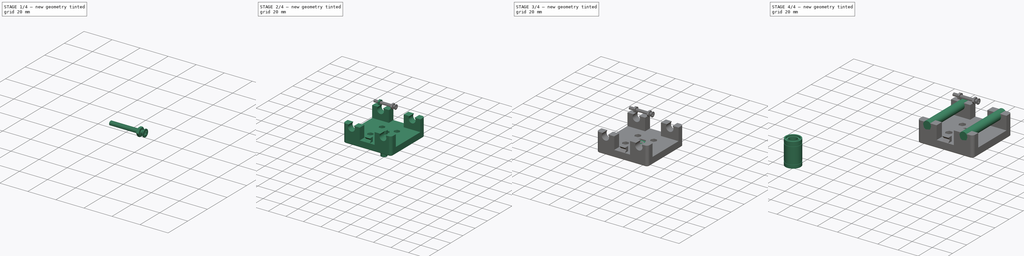
[diagram: build sequence overview — one tinted view per stage of 4, left to right]
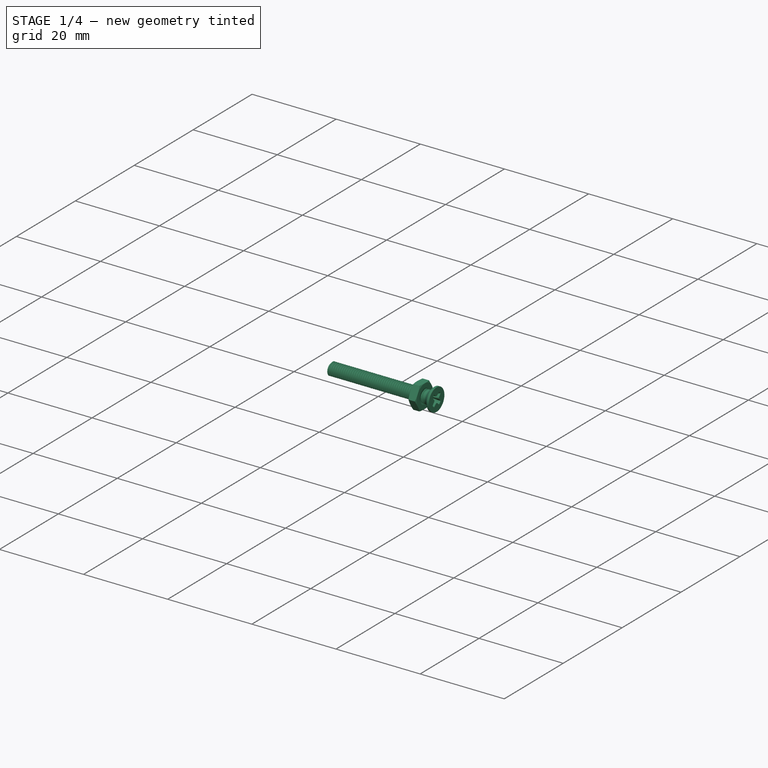
[diagram: stage 1 of 4 — iso view after this stage's code; geometry added in this stage tinted green]
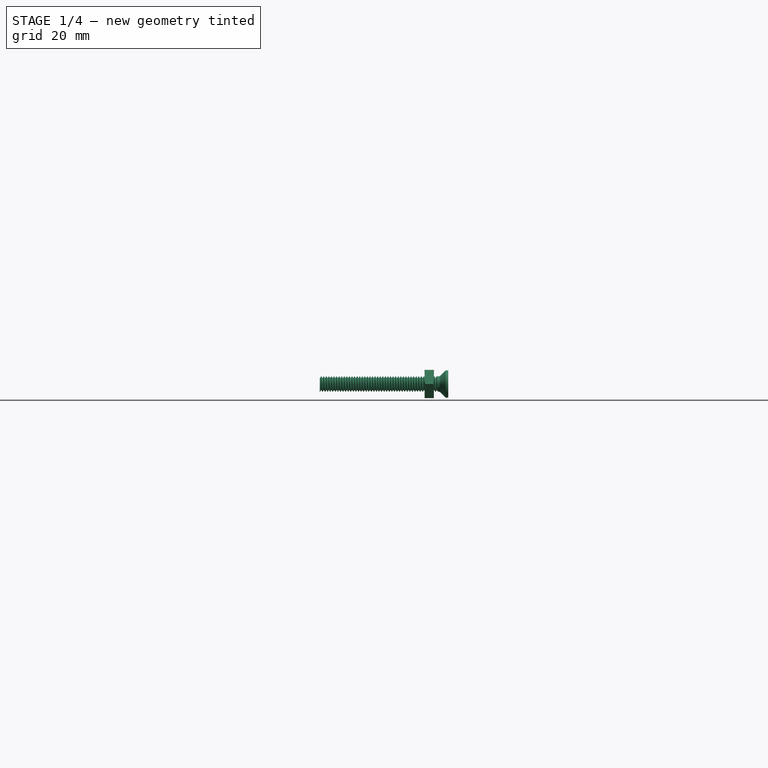
[diagram: stage 1 of 4 — front view after this stage's code; geometry added in this stage tinted green]
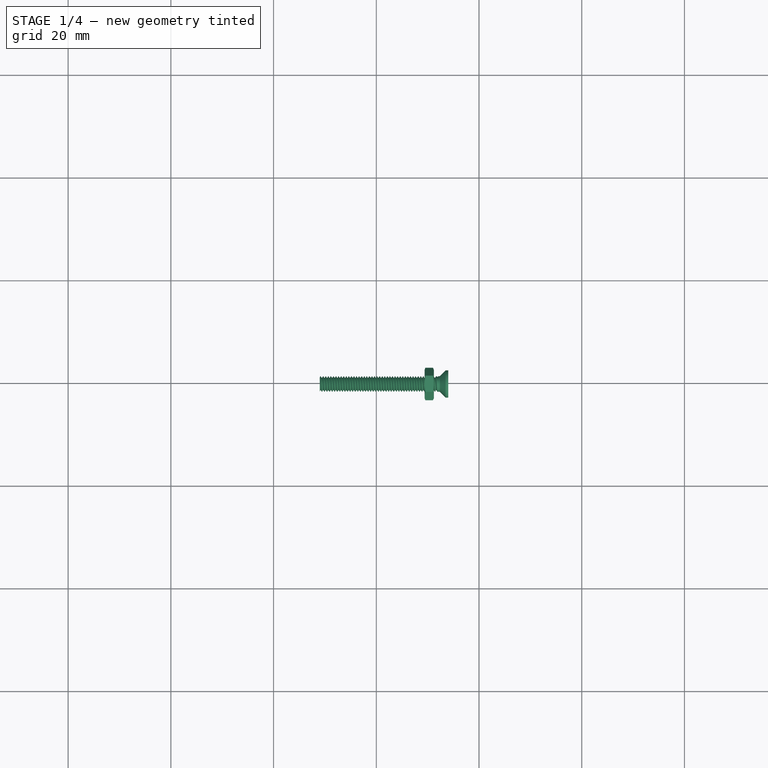
[diagram: stage 1 of 4 — top view after this stage's code; geometry added in this stage tinted green]
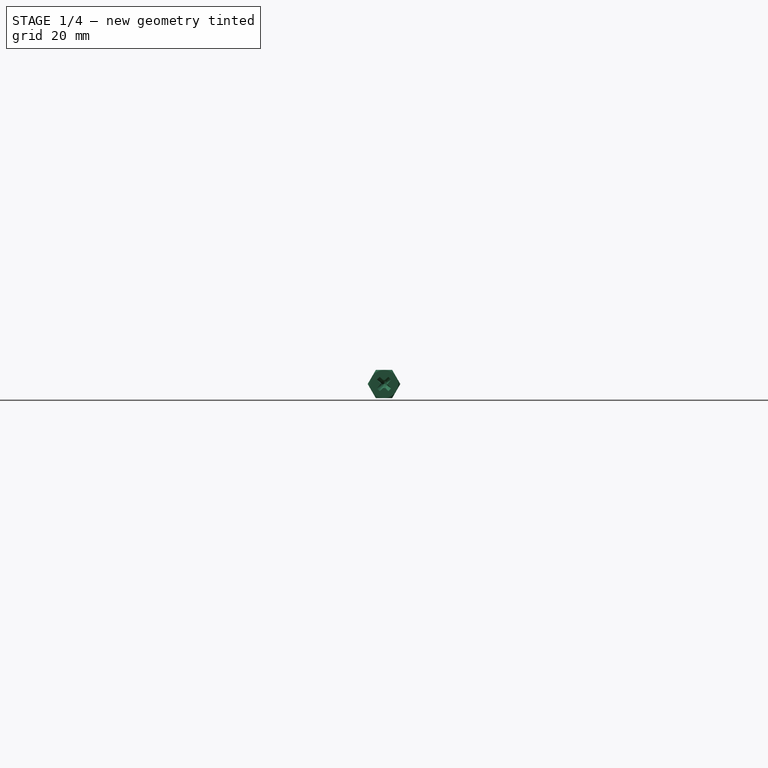
[diagram: stage 1 of 4 — right view after this stage's code; geometry added in this stage tinted green]
FCSTD DOCUMENT  (FreeCAD 0.18R15021 (Git))
Label: Pen_Holder
License: All rights reserved
LicenseURL: http://en.wikipedia.org/wiki/All_rights_reserved
objects: Part::Feature×7, App::Part×5, Part::Cylinder×3, Part::FeaturePython×3, Part::Cut×3, PartDesign::FeatureBase×2, Sketcher::SketchObject×1, PartDesign::Revolution×1, Part::Chamfer×1
note: 22 computed .brp shape members not serialized (recipe doc carries the construction recipe); baked Part::Feature solids carry a one-line shape summary decoded from their .brp

FEATURE [Part::FeaturePython] Nut  label="M3-Nut"  # Fasteners workbench fastener (typed FeaturePython)
  Placement = pos=(94.7,99.8,37) rot=(0,1,0;1.5708rad)
  diameter = 4
  invert = false
  matchOuter = false
  offset = 0
  thread = false
  type = 5
FEATURE [PartDesign::FeatureBase] Clone001
  BaseFeature = -> Nut
  Placement = pos=(109.4,99.85,36.95) rot=(0.57735,0.57735,0.57735;2.0944rad)
FEATURE [Part::FeaturePython] Screw  label="M3x25-Screw"  # Fasteners workbench fastener (typed FeaturePython)
  Placement = pos=(114,99.85,36.95) rot=(0,1,0;1.5708rad)
  diameter = 4
  invert = false
  length = 9
  matchOuter = false
  offset = 0
  thread = true
  type = 17
FEATURE [App::Part] Part026  label="Carriage z axis"
  Group = -> [Part025,Cut002007_solid,Cut002006_solid001,Nut,Clone,Clone001,Screw]
  License = CC BY 3.0
  LicenseURL = http://creativecommons.org/licenses/by/3.0/
  Origin = -> Origin026
  Placement = pos=(0,-4.82,0) rot=(0,0,1;0rad)
FEATURE [App::Part] Part024  label="Pen_Holder"
  Group = -> [Part026,Part027]
  License = CC BY 3.0
  LicenseURL = http://creativecommons.org/licenses/by/3.0/
  Origin = -> Origin024
  Placement = pos=(-64.55,-23,-91) rot=(1,0,0;1.5708rad)
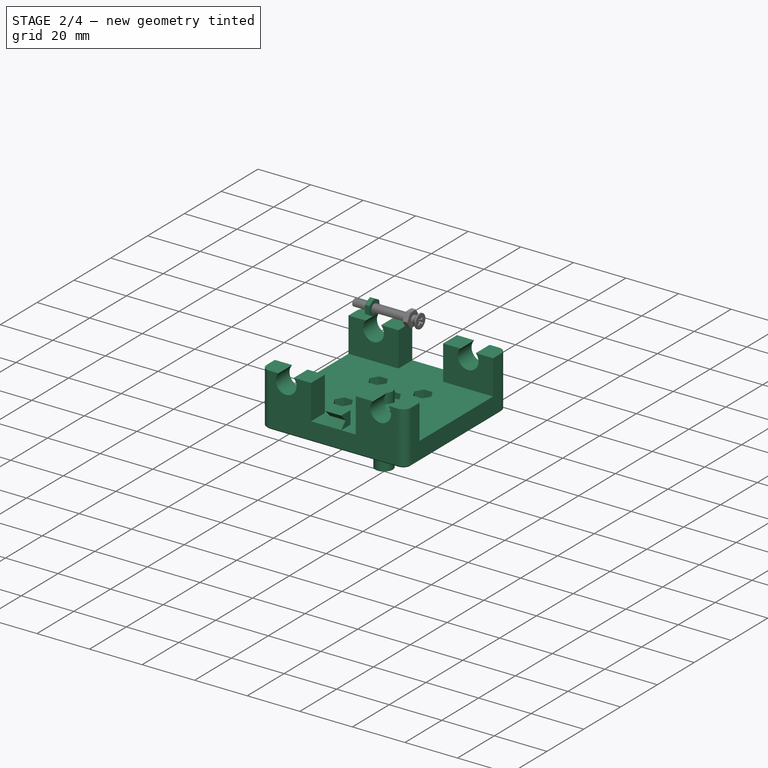
[diagram: stage 2 of 4 — iso view after this stage's code; geometry added in this stage tinted green]
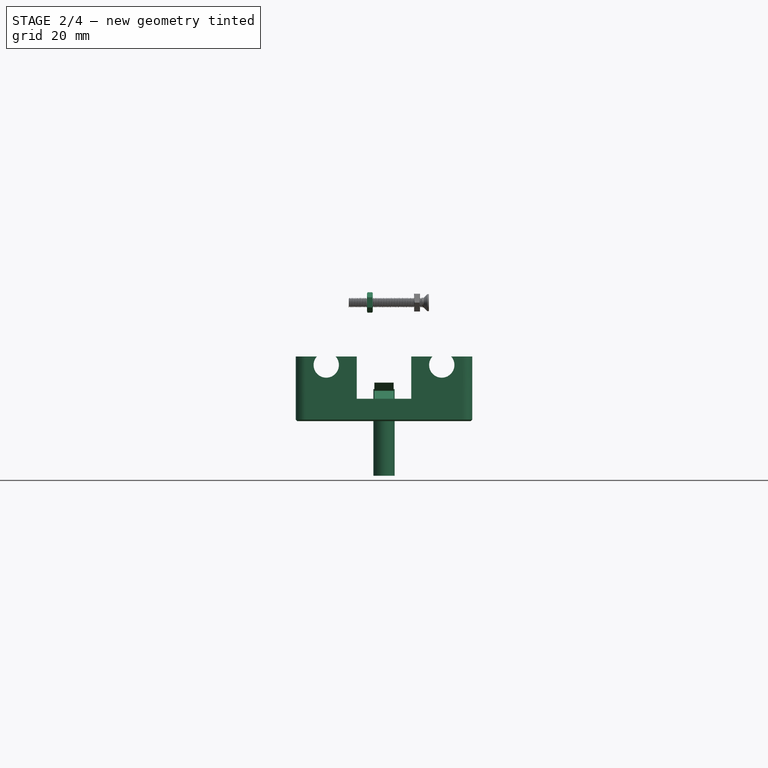
[diagram: stage 2 of 4 — front view after this stage's code; geometry added in this stage tinted green]
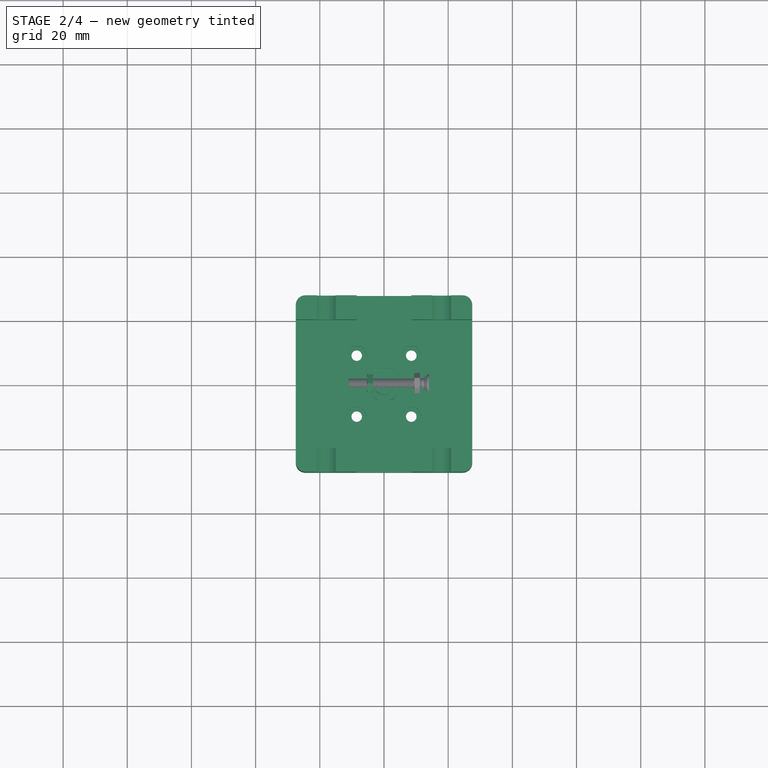
[diagram: stage 2 of 4 — top view after this stage's code; geometry added in this stage tinted green]
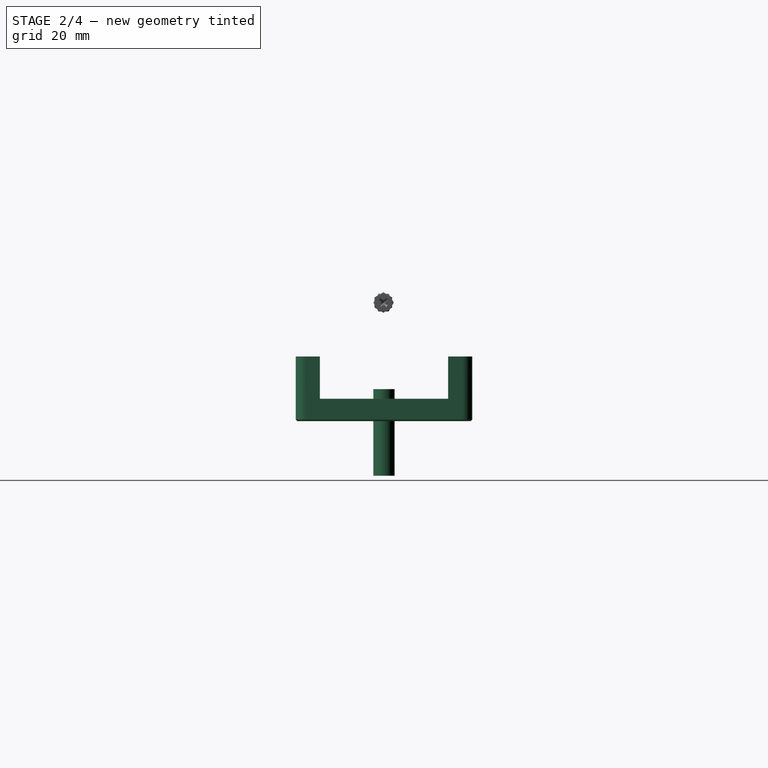
[diagram: stage 2 of 4 — right view after this stage's code; geometry added in this stage tinted green]
FEATURE [Part::Feature] Nut001001  label="M6-Nut001"
  Placement = pos=(100,100,4.8) rot=(0,0,1;0rad)
  shape: bbox 11.55 x 11.55 x 3.2 mm, 25 faces (baked)
FEATURE [Part::Feature] Cut002006_solid  label="Pen_Holder_Base_src"
  shape: bbox 55 x 55 x 20.16 mm, 767 faces (baked)
FEATURE [Part::Cut] Cut
  Base = -> Cut002006_solid
  Tool = -> Nut001001
FEATURE [Part::Cylinder] Cylinder
  Angle = 360
  AttacherType = Attacher::AttachEngine3D
  Height = 27
  Placement = pos=(100,100,-17) rot=(0,0,1;0rad)
  Radius = 3.3
FEATURE [App::Part] Part  label="Pen_Holder_Base003"
  Group = -> [Cut002006_solid,Cut001,Nut001001,Nut001002,Cut002,Cylinder,Cut,Chamfer]
  License = CC BY 3.0
  LicenseURL = http://creativecommons.org/licenses/by/3.0/
  Origin = -> Origin
FEATURE [App::Part] Part027  label="Tool base"
  Group = -> [Cylinder025,Cylinder026,Nut001,Part]
  License = CC BY 3.0
  LicenseURL = http://creativecommons.org/licenses/by/3.0/
  Origin = -> Origin027
FEATURE [PartDesign::FeatureBase] Clone
  BaseFeature = -> Nut
  Placement = pos=(94.7,99.8,37) rot=(0,1,0;1.5708rad)
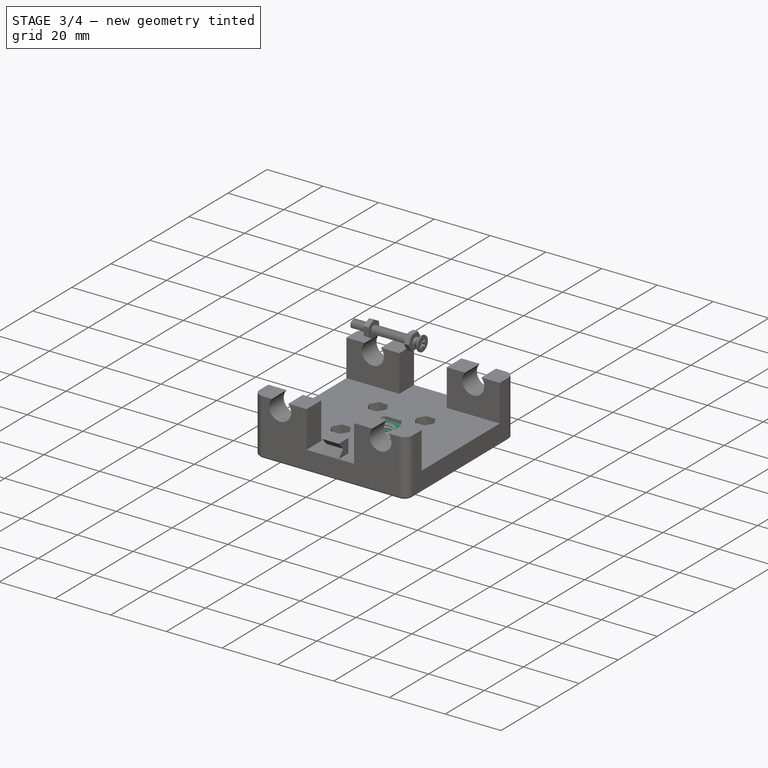
[diagram: stage 3 of 4 — iso view after this stage's code; geometry added in this stage tinted green]
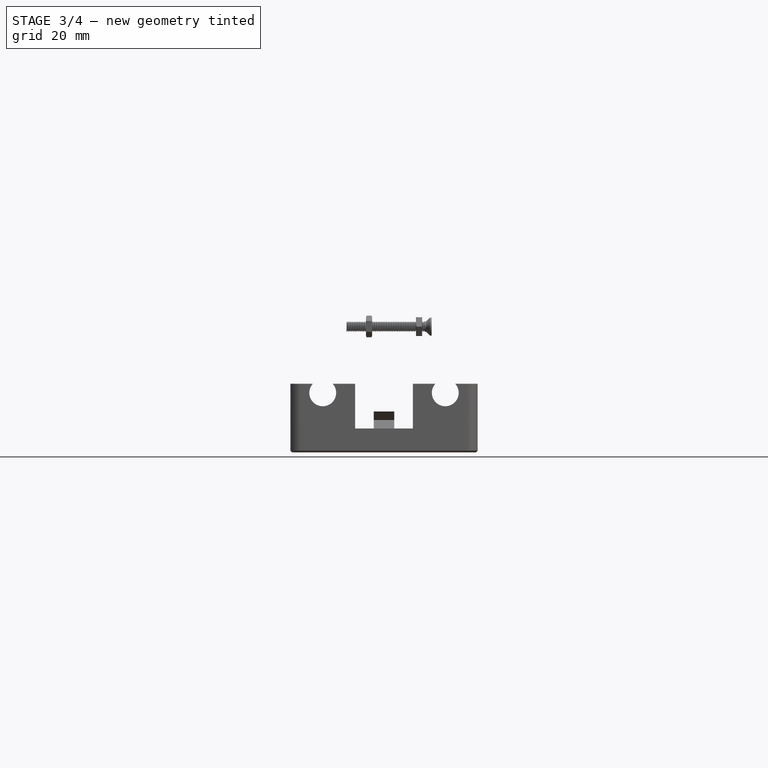
[diagram: stage 3 of 4 — front view after this stage's code; geometry added in this stage tinted green]
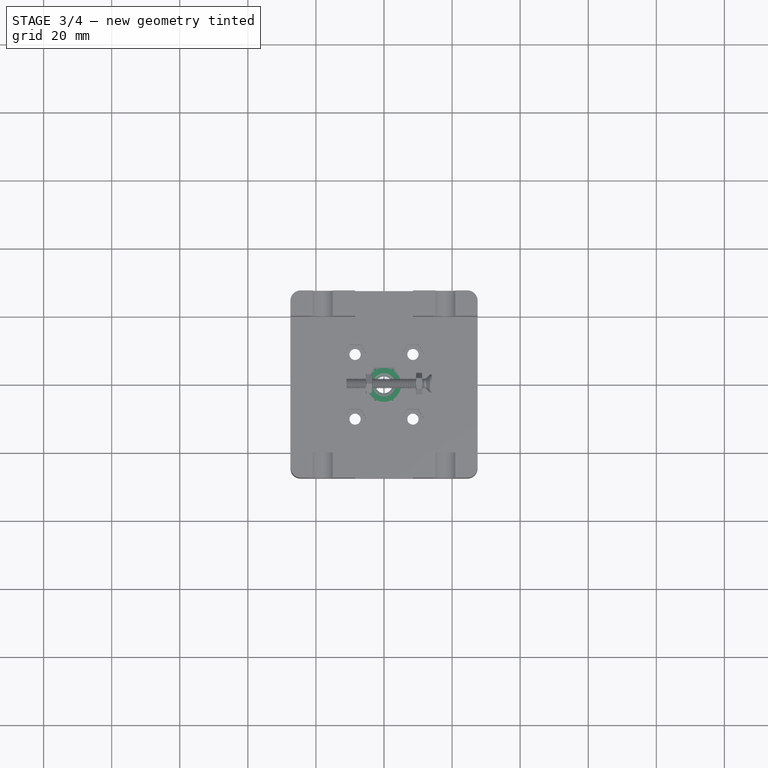
[diagram: stage 3 of 4 — top view after this stage's code; geometry added in this stage tinted green]
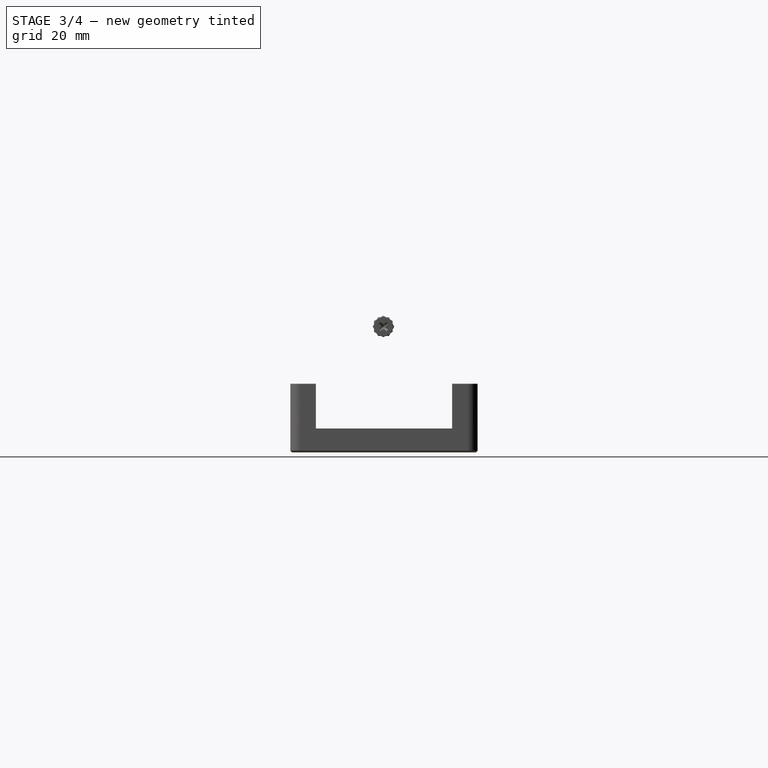
[diagram: stage 3 of 4 — right view after this stage's code; geometry added in this stage tinted green]
FEATURE [Part::FeaturePython] Nut001  label="M6-Nut"  # Fasteners workbench fastener (typed FeaturePython)
  Placement = pos=(100,100,2.8) rot=(0,0,1;0rad)
  diameter = 8
  invert = false
  matchOuter = false
  offset = 0
  thread = true
  type = 5
FEATURE [Part::Feature] Nut001002  label="M6-Nut002"
  Placement = pos=(100,100,2.8) rot=(0,0,1;0rad)
  shape: bbox 11.55 x 11.55 x 3.2 mm, 25 faces (baked)
FEATURE [Part::Cut] Cut001
  Base = -> Cut
  Tool = -> Nut001002
FEATURE [Part::Cut] Cut002
  Base = -> Cut001
  Tool = -> Cylinder
FEATURE [Part::Chamfer] Chamfer
  Base = -> Cut002
  Edges = 1 edges r=0.6: [Edge73]
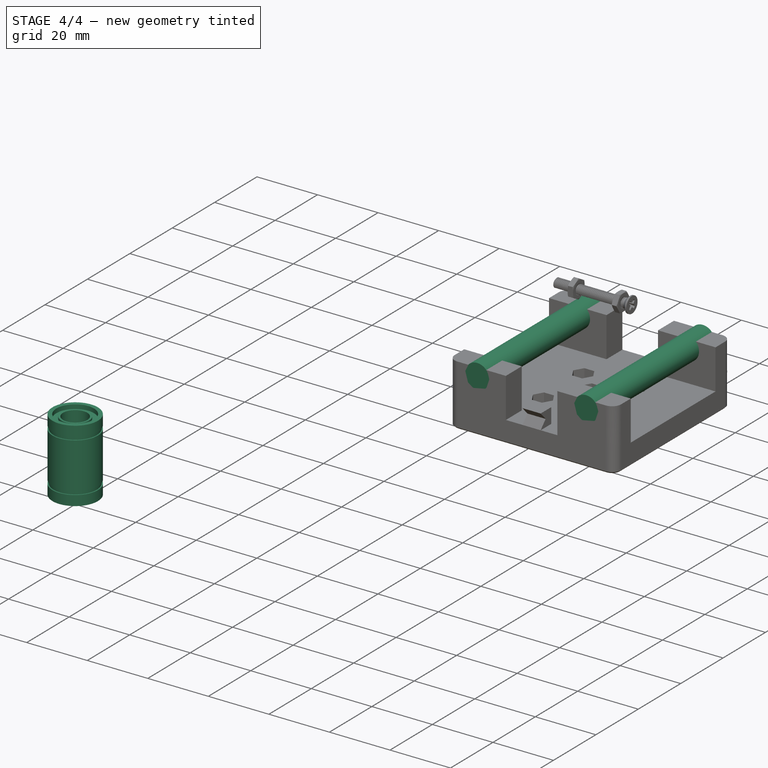
[diagram: stage 4 of 4 — iso view after this stage's code; geometry added in this stage tinted green]
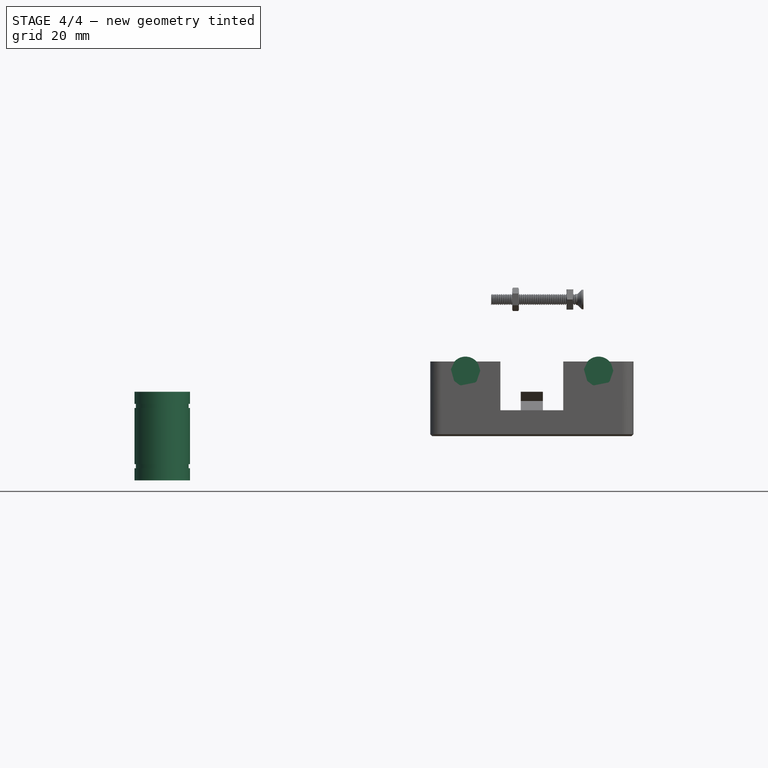
[diagram: stage 4 of 4 — front view after this stage's code; geometry added in this stage tinted green]
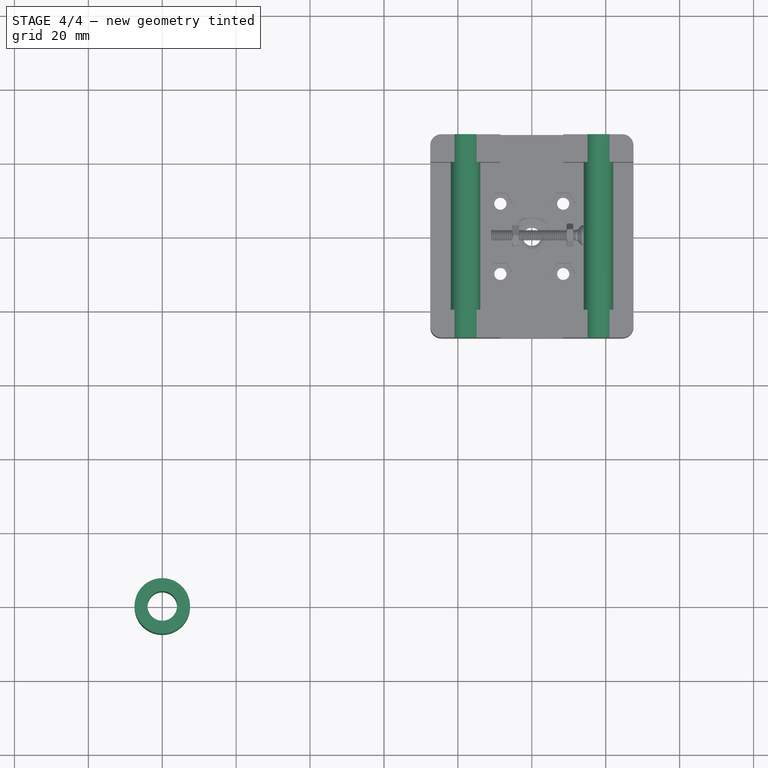
[diagram: stage 4 of 4 — top view after this stage's code; geometry added in this stage tinted green]
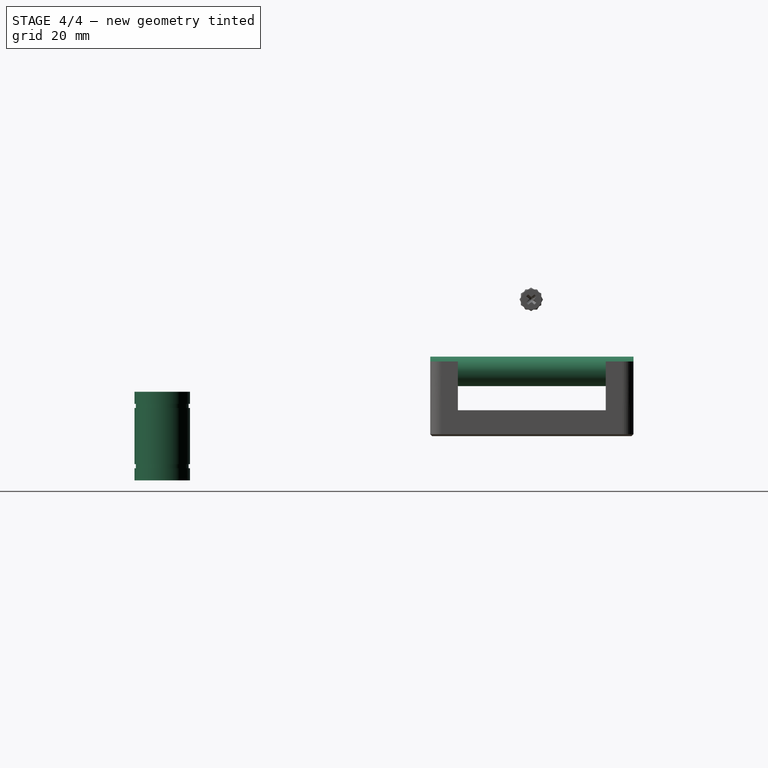
[diagram: stage 4 of 4 — right view after this stage's code; geometry added in this stage tinted green]
FEATURE [Part::Feature] Revolution015  label="LM8uu003"
  Placement = pos=(0,0,0) rot=(0.57735,0.57735,-0.57735;2.0944rad)
  shape: bbox 24 x 15 x 15 mm, 20 faces (baked)
FEATURE [Part::Feature] Revolution016  label="LM8uu004"
  Placement = pos=(0,-36,0) rot=(0.57735,0.57735,-0.57735;2.0944rad)
  shape: bbox 24 x 15 x 15 mm, 20 faces (baked)
FEATURE [Part::Cylinder] Cylinder026  label="Bar_8mm002"
  Angle = 360
  AttacherType = Attacher::AttachEngine3D
  Height = 55
  Placement = pos=(82.05,127.5,17.5) rot=(1,0,0;1.5708rad)
  Radius = 4
FEATURE [Part::Feature] Cut002006_solid001  label="Pen_Holder_Knob"
  Placement = pos=(115.205,0.1,-129.191) rot=(0,-1,0;1.5708rad)
  shape: bbox 8 x 9.995 x 10 mm, 970 faces (baked)
FEATURE [Sketcher::SketchObject] Sketch054  label="lm8uu-cross-section001"
  MapMode = 5
  Placement = pos=(0,0,0) rot=(1,0,0;1.5708rad)
  sketch-geometry (20):
    g0: LineSegment StartX=7.5 StartY=-12 StartZ=0 EndX=7.5 EndY=-8.7 EndZ=0
    g1: LineSegment StartX=7.5 StartY=7.6 StartZ=0 EndX=7.15 EndY=7.6 EndZ=0
    g2: LineSegment StartX=7.15 StartY=7.6 StartZ=0 EndX=7.15 EndY=8.7 EndZ=0
    g3: LineSegment StartX=7.15 StartY=8.7 StartZ=0 EndX=7.5 EndY=8.7 EndZ=0
    g4: LineSegment StartX=7.5 StartY=8.7 StartZ=0 EndX=7.5 EndY=12 EndZ=0
    g5: LineSegment StartX=7.5 StartY=12 StartZ=0 EndX=6.2 EndY=12 EndZ=0
    g6: LineSegment StartX=6.2 StartY=12 StartZ=0 EndX=6.2 EndY=10.6 EndZ=0
    g7: LineSegment StartX=6.2 StartY=10.6 StartZ=0 EndX=4.6 EndY=10.6 EndZ=0
    g8: LineSegment StartX=4.6 StartY=10.6 StartZ=0 EndX=4.6 EndY=11.3 EndZ=0
    g9: LineSegment StartX=4.6 StartY=11.3 StartZ=0 EndX=4 EndY=11.3 EndZ=0
    g10: LineSegment StartX=4 StartY=11.3 StartZ=0 EndX=4 EndY=-11.3 EndZ=0
    g11: LineSegment StartX=7.5 StartY=-7.6 StartZ=0 EndX=7.15 EndY=-7.6 EndZ=0
    g12: LineSegment StartX=7.15 StartY=-8.7 StartZ=0 EndX=7.5 EndY=-8.7 EndZ=0
    g13: LineSegment StartX=7.5 StartY=-7.6 StartZ=0 EndX=7.5 EndY=7.6 EndZ=0
    g14: LineSegment StartX=7.15 StartY=-7.6 StartZ=0 EndX=7.15 EndY=-8.7 EndZ=0
    g15: LineSegment StartX=7.5 StartY=-12 StartZ=0 EndX=6.2 EndY=-12 EndZ=0
    g16: LineSegment StartX=6.2 StartY=-12 StartZ=0 EndX=6.2 EndY=-10.6 EndZ=0
    g17: LineSegment StartX=6.2 StartY=-10.6 StartZ=0 EndX=4.6 EndY=-10.6 EndZ=0
    g18: LineSegment StartX=4.6 StartY=-10.6 StartZ=0 EndX=4.6 EndY=-11.3 EndZ=0
    g19: LineSegment StartX=4.6 StartY=-11.3 StartZ=0 EndX=4 EndY=-11.3 EndZ=0
  constraints (58):
    c: Coincident(g13,g1)
    c: Coincident(g1,g2)
    c: Vertical(g2)
    c: Coincident(g2,g3)
    c: Coincident(g3,g4)
    c: Vertical(g4)
    c: Coincident(g4,g5)
    c: Coincident(g5,g6)
    c: Vertical(g6)
    c: Coincident(g6,g7)
    c: Horizontal(g7)
    c: Coincident(g7,g8)
    c: Vertical(g8)
    c: Coincident(g8,g9)
    c: Horizontal(g9)
    c: Coincident(g9,g10)
    c: Vertical(g10)
    c: Horizontal(g1)
    c: Horizontal(g5)
    c: Horizontal(g3)
    c: PointOnObject(g3,g0)
    c: Symmetric(g0,g4,g-1)
    c: DistanceY(g4,g0) = -24
    c: DistanceY(g2) = 1.1
    c: DistanceX(g3) = 0.35
    c: DistanceX(g-1,g4) = 7.5
    c: DistanceX(g-1,g9) = 4
    c: DistanceX(g5) = -1.3
    c: DistanceX(g9) = -0.6
    c: DistanceY(g6) = -1.4
    c: DistanceY(g8) = 0.7
    c: Horizontal(g11)
    c: Horizontal(g12)
    c: Coincident(g13,g11)
    c: Tangent(g0,g13)
    c: Coincident(g12,g0)
    c: PointOnObject(g14,g11)
    c: Coincident(g14,g12)
    c: Vertical(g14)
    c: Symmetric(g1,g11,g-1)
    c: DistanceY(g13) = 15.2
    c: Equal(g14,g2)
    c: Coincident(g0,g15)
    c: Horizontal(g15)
    c: Coincident(g15,g16)
    c: Vertical(g16)
    c: Coincident(g16,g17)
    c: Horizontal(g17)
    c: Coincident(g17,g18)
    c: Vertical(g18)
    c: Coincident(g18,g19)
    c: Horizontal(g19)
    c: Coincident(g10,g19)
    c: Symmetric(g10,g9,g-1)
    c: Symmetric(g16,g6,g-1)
    c: Symmetric(g17,g7,g-1)
    c: Coincident(g14,g11)
    c: PointOnObject(g11,g2)
FEATURE [PartDesign::Revolution] Revolution014  label="LM8uu002"
  Angle = 360
  Axis = (0,0,1)
  Base = (0,0,0)
  Placement = pos=(0,0,0) rot=(1,0,0;1.5708rad)
  Profile = -> Sketch054
  ReferenceAxis = -> Sketch054 [V_Axis]
  Reversed = true
FEATURE [App::Part] Part025  label="LM8UU001"
  Group = -> [Revolution015,Sketch054,Revolution014,Revolution016]
  License = CC BY 3.0
  LicenseURL = http://creativecommons.org/licenses/by/3.0/
  Origin = -> Origin025
  Placement = pos=(82.1,99.88,17.55) rot=(0,0,1;1.5708rad)
FEATURE [Part::Feature] Cut002007_solid  label="Pen_Holder_Carriage"
  Placement = pos=(200,-44.83,8) rot=(0,0,1;1.5708rad)
  shape: bbox 55 x 24 x 32.75 mm, 444 faces (baked)
FEATURE [Part::Cylinder] Cylinder025  label="Bar_8mm001"
  Angle = 360
  AttacherType = Attacher::AttachEngine3D
  Height = 55
  Placement = pos=(118.05,127.5,17.5) rot=(1,0,0;1.5708rad)
  Radius = 4
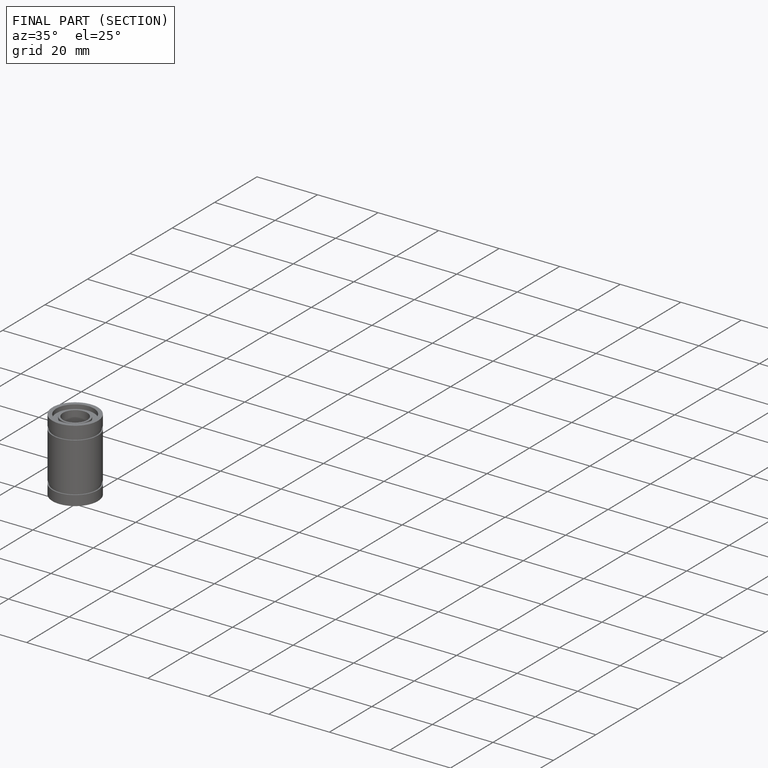
[diagram: finished part — half-section view (interior)]
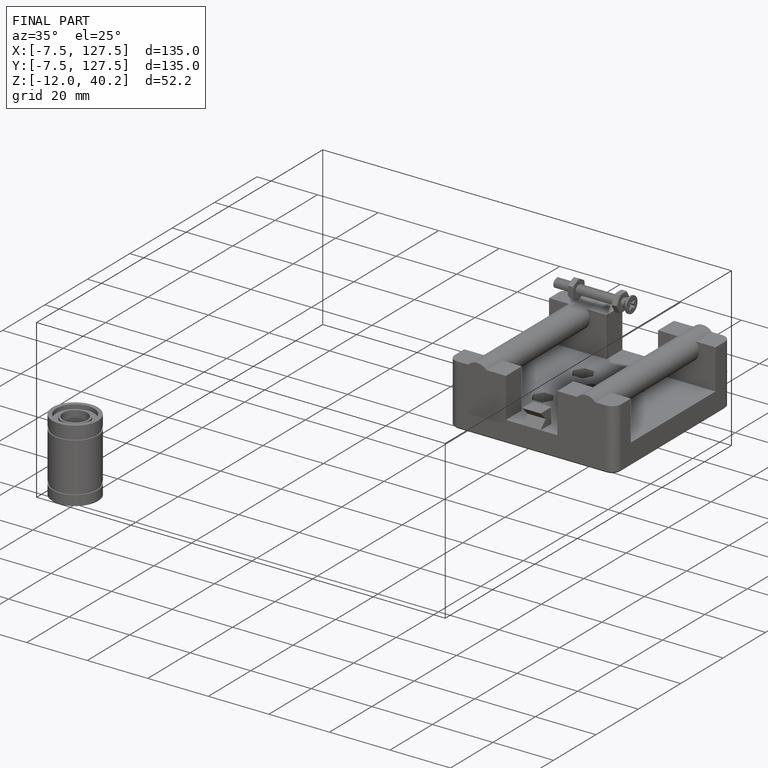
[diagram: finished part — iso view with bounding-box wireframe]
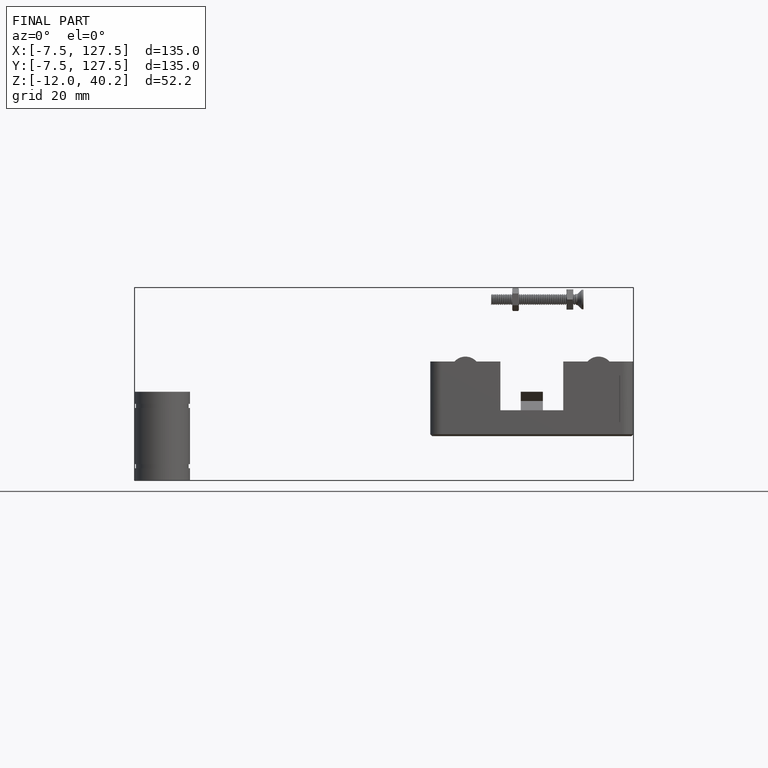
[diagram: finished part — front view with bounding-box wireframe]
